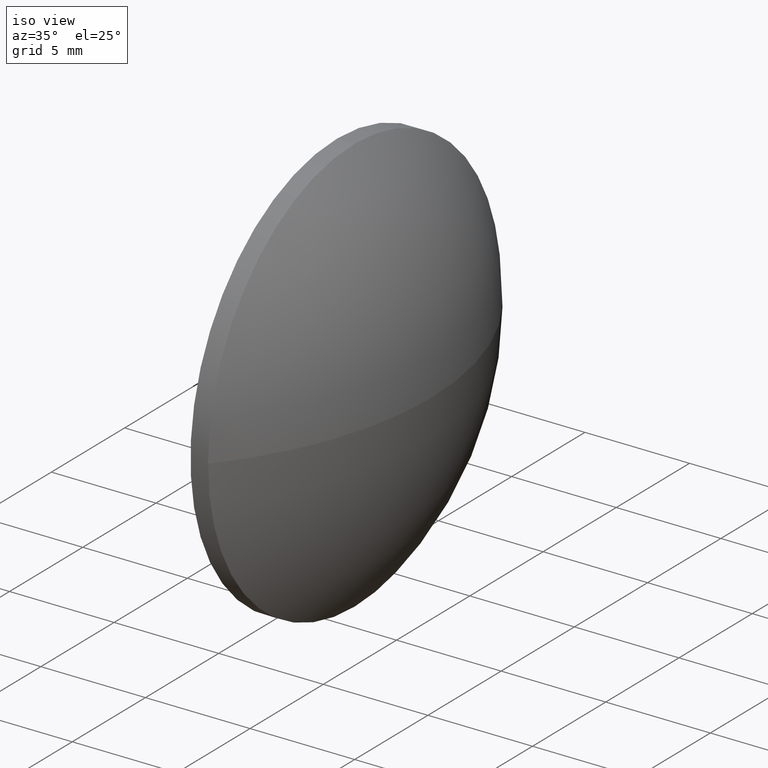
[diagram: clean part render]
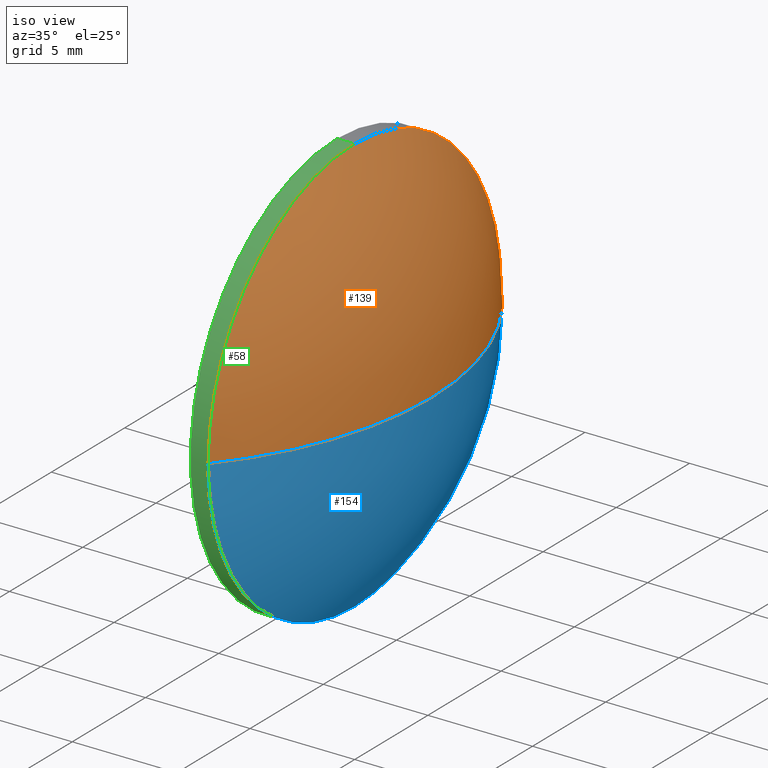
[diagram: same view with three faces highlighted in distinct colors, each labeled with its STEP entity id]
A machine part, iso view with three faces highlighted in distinct colors.
Their STEP definitions:

[orange] entity #139 — the highlighted spherical surface has radius 15.4912 mm.
#11 = CARTESIAN_POINT ( 'NONE',  ( 502.4075276990623700, 160.8342270699432700, 0.0000000000000000000 ) ) ;
#13 = ORIENTED_EDGE ( 'NONE', *, *, #74, .F. ) ;
#15 = ORIENTED_EDGE ( 'NONE', *, *, #38, .F. ) ;
#26 = FACE_OUTER_BOUND ( 'NONE', #52, .T. ) ;
#28 = DIRECTION ( 'NONE',  ( 0.0000000000000000000, 1.224646799147353200E-016, -1.000000000000000000 ) ) ;
#36 = DIRECTION ( 'NONE',  ( -1.000000000000000000, -0.0000000000000000000, -0.0000000000000000000 ) ) ;
#38 = EDGE_CURVE ( 'NONE', #100, #48, #178, .T. ) ;
#40 = ORIENTED_EDGE ( 'NONE', *, *, #136, .F. ) ;
#42 = CIRCLE ( 'NONE', #157, 15.49120218579241900 ) ;
#45 = SPHERICAL_SURFACE ( 'NONE', #153, 15.49120218579242400 ) ;
#48 = VERTEX_POINT ( 'NONE', #159 ) ;
#52 = EDGE_LOOP ( 'NONE', ( #15, #53, #40, #13 ) ) ;
#53 = ORIENTED_EDGE ( 'NONE', *, *, #150, .T. ) ;
#54 = AXIS2_PLACEMENT_3D ( 'NONE', #109, #28, #135 ) ;
#59 = DIRECTION ( 'NONE',  ( -0.0000000000000000000, 0.0000000000000000000, 1.000000000000000000 ) ) ;
#61 = CARTESIAN_POINT ( 'NONE',  ( 502.4075276990623700, 160.8342270699432700, 0.0000000000000000000 ) ) ;
#69 = DIRECTION ( 'NONE',  ( 1.000000000000000000, 0.0000000000000000000, 0.0000000000000000000 ) ) ;
#70 = CARTESIAN_POINT ( 'NONE',  ( 502.4075276990623700, 160.8342270699432700, 10.00000000000000900 ) ) ;
#74 = EDGE_CURVE ( 'NONE', #48, #125, #99, .T. ) ;
#77 = DIRECTION ( 'NONE',  ( 0.0000000000000000000, 0.0000000000000000000, 1.000000000000000000 ) ) ;
#78 = DIRECTION ( 'NONE',  ( -1.000000000000000000, -0.0000000000000000000, -0.0000000000000000000 ) ) ;
#88 = CIRCLE ( 'NONE', #145, 10.00000000000000900 ) ;
#92 = CARTESIAN_POINT ( 'NONE',  ( 490.5763255132699800, 160.8342270699432400, 0.0000000000000000000 ) ) ;
#94 = DIRECTION ( 'NONE',  ( 0.0000000000000000000, 1.000000000000000000, 0.0000000000000000000 ) ) ;
#99 = CIRCLE ( 'NONE', #121, 10.00000000000000900 ) ;
#100 = VERTEX_POINT ( 'NONE', #133 ) ;
#109 = CARTESIAN_POINT ( 'NONE',  ( 490.5763255132699800, 160.8342270699432400, 0.0000000000000000000 ) ) ;
#110 = VERTEX_POINT ( 'NONE', #116 ) ;
#111 = DIRECTION ( 'NONE',  ( -0.0000000000000000000, 0.0000000000000000000, -1.000000000000000000 ) ) ;
#116 = CARTESIAN_POINT ( 'NONE',  ( 502.4075276990623700, 170.8342270699432700, 0.0000000000000000000 ) ) ;
#121 = AXIS2_PLACEMENT_3D ( 'NONE', #11, #36, #148 ) ;
#125 = VERTEX_POINT ( 'NONE', #70 ) ;
#133 = CARTESIAN_POINT ( 'NONE',  ( 506.0675276990624000, 160.8342270699432400, 0.0000000000000000000 ) ) ;
#135 = DIRECTION ( 'NONE',  ( 0.0000000000000000000, 1.000000000000000000, 1.224646799147353700E-016 ) ) ;
#136 = EDGE_CURVE ( 'NONE', #125, #110, #88, .T. ) ;
#139 = ADVANCED_FACE ( 'NONE', ( #26 ), #45, .T. ) ;
#145 = AXIS2_PLACEMENT_3D ( 'NONE', #61, #78, #77 ) ;
#148 = DIRECTION ( 'NONE',  ( 0.0000000000000000000, 0.0000000000000000000, 1.000000000000000000 ) ) ;
#150 = EDGE_CURVE ( 'NONE', #100, #110, #42, .T. ) ;
#153 = AXIS2_PLACEMENT_3D ( 'NONE', #180, #111, #94 ) ;
#157 = AXIS2_PLACEMENT_3D ( 'NONE', #92, #59, #69 ) ;
#159 = CARTESIAN_POINT ( 'NONE',  ( 502.4075276990623700, 150.8342270699432400, -1.224646799147354000E-015 ) ) ;
#178 = CIRCLE ( 'NONE', #54, 15.49120218579241900 ) ;
#180 = CARTESIAN_POINT ( 'NONE',  ( 490.5763255132699800, 160.8342270699432400, 0.0000000000000000000 ) ) ;

[blue] entity #154 — the highlighted spherical surface has radius 15.4912 mm.
#4 = AXIS2_PLACEMENT_3D ( 'NONE', #27, #118, #56 ) ;
#27 = CARTESIAN_POINT ( 'NONE',  ( 502.4075276990623700, 160.8342270699432700, 0.0000000000000000000 ) ) ;
#28 = DIRECTION ( 'NONE',  ( 0.0000000000000000000, 1.224646799147353200E-016, -1.000000000000000000 ) ) ;
#30 = EDGE_CURVE ( 'NONE', #44, #48, #103, .T. ) ;
#37 = ORIENTED_EDGE ( 'NONE', *, *, #150, .F. ) ;
#38 = EDGE_CURVE ( 'NONE', #100, #48, #178, .T. ) ;
#42 = CIRCLE ( 'NONE', #157, 15.49120218579241900 ) ;
#43 = DIRECTION ( 'NONE',  ( 0.0000000000000000000, 1.000000000000000000, 0.0000000000000000000 ) ) ;
#44 = VERTEX_POINT ( 'NONE', #177 ) ;
#48 = VERTEX_POINT ( 'NONE', #159 ) ;
#54 = AXIS2_PLACEMENT_3D ( 'NONE', #109, #28, #135 ) ;
#56 = DIRECTION ( 'NONE',  ( 0.0000000000000000000, 0.0000000000000000000, 1.000000000000000000 ) ) ;
#59 = DIRECTION ( 'NONE',  ( -0.0000000000000000000, 0.0000000000000000000, 1.000000000000000000 ) ) ;
#69 = DIRECTION ( 'NONE',  ( 1.000000000000000000, 0.0000000000000000000, 0.0000000000000000000 ) ) ;
#86 = ORIENTED_EDGE ( 'NONE', *, *, #38, .T. ) ;
#87 = EDGE_LOOP ( 'NONE', ( #37, #86, #101, #138 ) ) ;
#92 = CARTESIAN_POINT ( 'NONE',  ( 490.5763255132699800, 160.8342270699432400, 0.0000000000000000000 ) ) ;
#93 = SPHERICAL_SURFACE ( 'NONE', #169, 15.49120218579242400 ) ;
#95 = DIRECTION ( 'NONE',  ( -1.000000000000000000, -0.0000000000000000000, -0.0000000000000000000 ) ) ;
#97 = EDGE_CURVE ( 'NONE', #110, #44, #130, .T. ) ;
#100 = VERTEX_POINT ( 'NONE', #133 ) ;
#101 = ORIENTED_EDGE ( 'NONE', *, *, #30, .F. ) ;
#103 = CIRCLE ( 'NONE', #4, 10.00000000000000900 ) ;
#109 = CARTESIAN_POINT ( 'NONE',  ( 490.5763255132699800, 160.8342270699432400, 0.0000000000000000000 ) ) ;
#110 = VERTEX_POINT ( 'NONE', #116 ) ;
#116 = CARTESIAN_POINT ( 'NONE',  ( 502.4075276990623700, 170.8342270699432700, 0.0000000000000000000 ) ) ;
#118 = DIRECTION ( 'NONE',  ( -1.000000000000000000, -0.0000000000000000000, -0.0000000000000000000 ) ) ;
#123 = CARTESIAN_POINT ( 'NONE',  ( 502.4075276990623700, 160.8342270699432700, 0.0000000000000000000 ) ) ;
#130 = CIRCLE ( 'NONE', #131, 10.00000000000000900 ) ;
#131 = AXIS2_PLACEMENT_3D ( 'NONE', #123, #95, #167 ) ;
#133 = CARTESIAN_POINT ( 'NONE',  ( 506.0675276990624000, 160.8342270699432400, 0.0000000000000000000 ) ) ;
#135 = DIRECTION ( 'NONE',  ( 0.0000000000000000000, 1.000000000000000000, 1.224646799147353700E-016 ) ) ;
#138 = ORIENTED_EDGE ( 'NONE', *, *, #97, .F. ) ;
#140 = CARTESIAN_POINT ( 'NONE',  ( 490.5763255132699800, 160.8342270699432400, 0.0000000000000000000 ) ) ;
#150 = EDGE_CURVE ( 'NONE', #100, #110, #42, .T. ) ;
#154 = ADVANCED_FACE ( 'NONE', ( #164 ), #93, .T. ) ;
#157 = AXIS2_PLACEMENT_3D ( 'NONE', #92, #59, #69 ) ;
#159 = CARTESIAN_POINT ( 'NONE',  ( 502.4075276990623700, 150.8342270699432400, -1.224646799147354000E-015 ) ) ;
#164 = FACE_OUTER_BOUND ( 'NONE', #87, .T. ) ;
#165 = DIRECTION ( 'NONE',  ( -0.0000000000000000000, 0.0000000000000000000, -1.000000000000000000 ) ) ;
#167 = DIRECTION ( 'NONE',  ( 0.0000000000000000000, 0.0000000000000000000, 1.000000000000000000 ) ) ;
#169 = AXIS2_PLACEMENT_3D ( 'NONE', #140, #165, #43 ) ;
#177 = CARTESIAN_POINT ( 'NONE',  ( 502.4075276990623700, 160.8342270699432700, -10.00000000000000900 ) ) ;
#178 = CIRCLE ( 'NONE', #54, 15.49120218579241900 ) ;

[green] entity #58 — the highlighted cylindrical surface (partial cylindrical patch) has radius 10 mm, axis along (-1, -0, -0).
#4 = AXIS2_PLACEMENT_3D ( 'NONE', #27, #118, #56 ) ;
#11 = CARTESIAN_POINT ( 'NONE',  ( 502.4075276990623700, 160.8342270699432700, 0.0000000000000000000 ) ) ;
#12 = ORIENTED_EDGE ( 'NONE', *, *, #30, .T. ) ;
#14 = CARTESIAN_POINT ( 'NONE',  ( 496.9109419236094700, 160.8342270699432700, -10.00000000000000900 ) ) ;
#21 = ORIENTED_EDGE ( 'NONE', *, *, #156, .T. ) ;
#23 = LINE ( 'NONE', #14, #134 ) ;
#27 = CARTESIAN_POINT ( 'NONE',  ( 502.4075276990623700, 160.8342270699432700, 0.0000000000000000000 ) ) ;
#30 = EDGE_CURVE ( 'NONE', #44, #48, #103, .T. ) ;
#33 = DIRECTION ( 'NONE',  ( 0.0000000000000000000, 0.0000000000000000000, 1.000000000000000000 ) ) ;
#34 = CARTESIAN_POINT ( 'NONE',  ( 496.9109419236094700, 160.8342270699432700, 0.0000000000000000000 ) ) ;
#36 = DIRECTION ( 'NONE',  ( -1.000000000000000000, -0.0000000000000000000, -0.0000000000000000000 ) ) ;
#44 = VERTEX_POINT ( 'NONE', #177 ) ;
#47 = CARTESIAN_POINT ( 'NONE',  ( 496.9109419236094700, 160.8342270699432700, 10.00000000000000900 ) ) ;
#48 = VERTEX_POINT ( 'NONE', #159 ) ;
#49 = EDGE_CURVE ( 'NONE', #44, #132, #23, .T. ) ;
#51 = CIRCLE ( 'NONE', #186, 10.00000000000000900 ) ;
#56 = DIRECTION ( 'NONE',  ( 0.0000000000000000000, 0.0000000000000000000, 1.000000000000000000 ) ) ;
#58 = ADVANCED_FACE ( 'NONE', ( #141 ), #96, .T. ) ;
#62 = CARTESIAN_POINT ( 'NONE',  ( 501.5675276990623400, 160.8342270699432700, -10.00000000000000900 ) ) ;
#64 = DIRECTION ( 'NONE',  ( -1.000000000000000000, -0.0000000000000000000, -0.0000000000000000000 ) ) ;
#65 = EDGE_CURVE ( 'NONE', #132, #126, #51, .T. ) ;
#70 = CARTESIAN_POINT ( 'NONE',  ( 502.4075276990623700, 160.8342270699432700, 10.00000000000000900 ) ) ;
#74 = EDGE_CURVE ( 'NONE', #48, #125, #99, .T. ) ;
#83 = DIRECTION ( 'NONE',  ( -1.000000000000000000, -0.0000000000000000000, -0.0000000000000000000 ) ) ;
#85 = ORIENTED_EDGE ( 'NONE', *, *, #49, .F. ) ;
#89 = AXIS2_PLACEMENT_3D ( 'NONE', #34, #176, #33 ) ;
#90 = EDGE_LOOP ( 'NONE', ( #85, #12, #163, #21, #168 ) ) ;
#96 = CYLINDRICAL_SURFACE ( 'NONE', #89, 10.00000000000000900 ) ;
#99 = CIRCLE ( 'NONE', #121, 10.00000000000000900 ) ;
#103 = CIRCLE ( 'NONE', #4, 10.00000000000000900 ) ;
#118 = DIRECTION ( 'NONE',  ( -1.000000000000000000, -0.0000000000000000000, -0.0000000000000000000 ) ) ;
#119 = CARTESIAN_POINT ( 'NONE',  ( 501.5675276990623400, 160.8342270699432700, 10.00000000000000900 ) ) ;
#121 = AXIS2_PLACEMENT_3D ( 'NONE', #11, #36, #148 ) ;
#125 = VERTEX_POINT ( 'NONE', #70 ) ;
#126 = VERTEX_POINT ( 'NONE', #119 ) ;
#132 = VERTEX_POINT ( 'NONE', #62 ) ;
#134 = VECTOR ( 'NONE', #147, 1000.000000000000000 ) ;
#141 = FACE_OUTER_BOUND ( 'NONE', #90, .T. ) ;
#144 = CARTESIAN_POINT ( 'NONE',  ( 501.5675276990623400, 160.8342270699432700, 0.0000000000000000000 ) ) ;
#147 = DIRECTION ( 'NONE',  ( -1.000000000000000000, -0.0000000000000000000, -0.0000000000000000000 ) ) ;
#148 = DIRECTION ( 'NONE',  ( 0.0000000000000000000, 0.0000000000000000000, 1.000000000000000000 ) ) ;
#155 = DIRECTION ( 'NONE',  ( 0.0000000000000000000, 0.0000000000000000000, 1.000000000000000000 ) ) ;
#156 = EDGE_CURVE ( 'NONE', #125, #126, #171, .T. ) ;
#159 = CARTESIAN_POINT ( 'NONE',  ( 502.4075276990623700, 150.8342270699432400, -1.224646799147354000E-015 ) ) ;
#160 = VECTOR ( 'NONE', #83, 1000.000000000000000 ) ;
#163 = ORIENTED_EDGE ( 'NONE', *, *, #74, .T. ) ;
#168 = ORIENTED_EDGE ( 'NONE', *, *, #65, .F. ) ;
#171 = LINE ( 'NONE', #47, #160 ) ;
#176 = DIRECTION ( 'NONE',  ( -1.000000000000000000, -0.0000000000000000000, -0.0000000000000000000 ) ) ;
#177 = CARTESIAN_POINT ( 'NONE',  ( 502.4075276990623700, 160.8342270699432700, -10.00000000000000900 ) ) ;
#186 = AXIS2_PLACEMENT_3D ( 'NONE', #144, #64, #155 ) ;